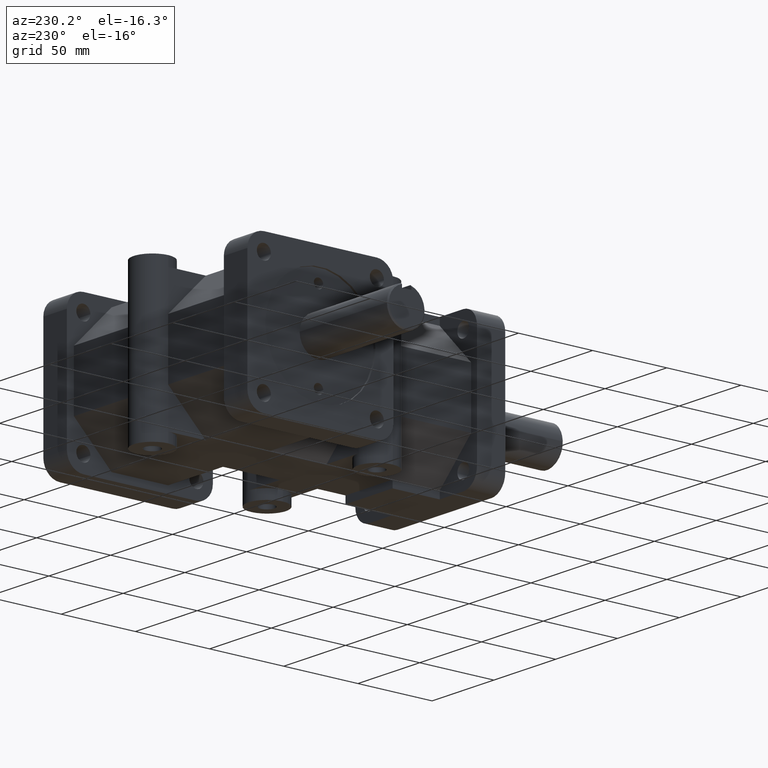
[diagram: clean part render]
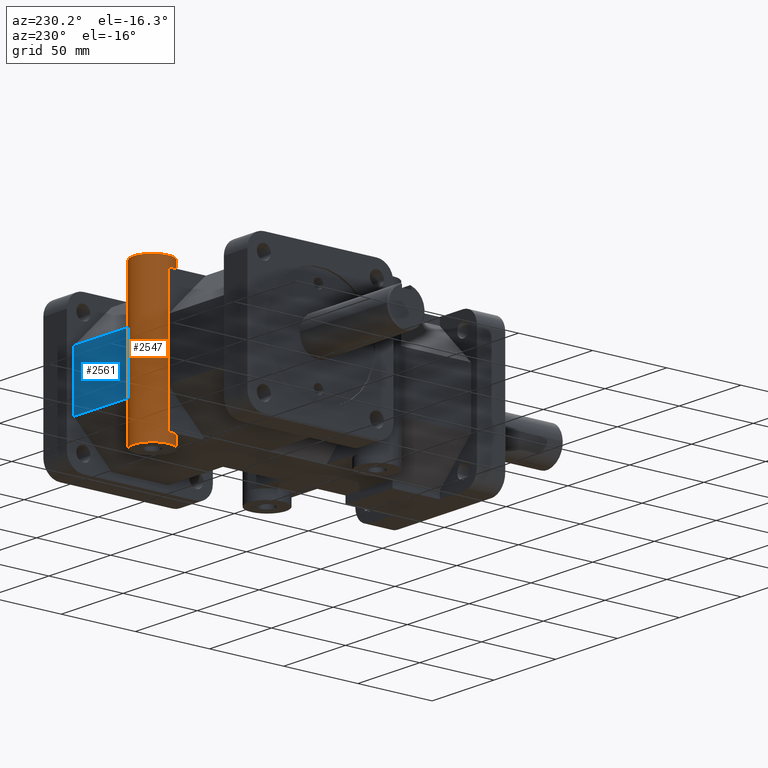
[diagram: same view with the hole feature highlighted: cylindrical wall and planar end face, labeled with their STEP entity ids]
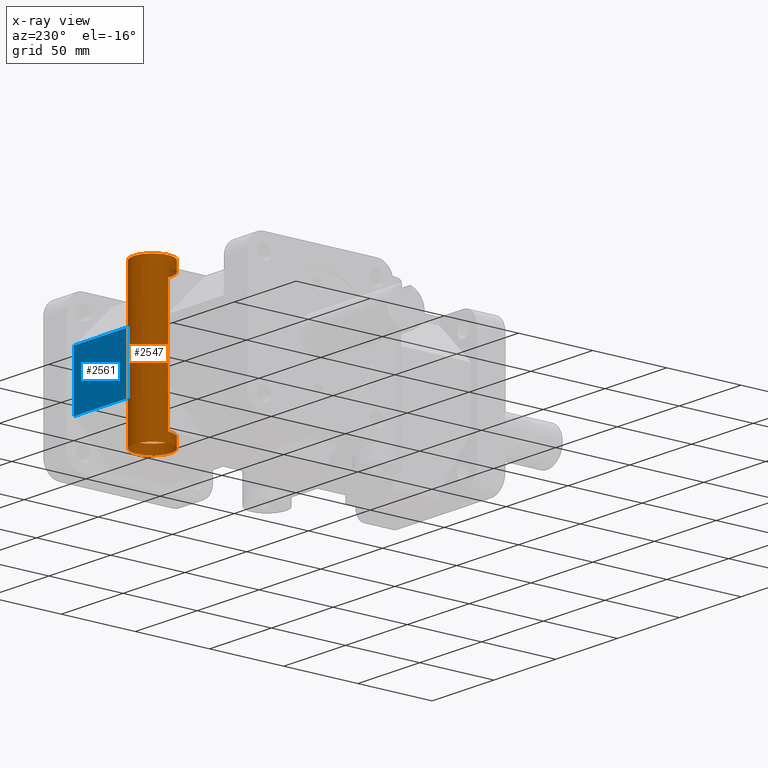
[diagram: x-ray of the same camera — body ghosted, the hole faces saturated]
A machine part, auxiliary view. The highlighted faces form one hole feature of diameter 25.4 mm: the cylindrical wall (entity #2547, orange) and its adjacent planar end face (entity #2561, blue) — they share a circular edge in the B-rep.
The next image is the same camera in x-ray (body ghosted, the hole faces saturated) — the bore reads through the body.
Wall:
#62=CYLINDRICAL_SURFACE('',#2807,0.5);
#120=CIRCLE('',#2614,0.5);
#133=CIRCLE('',#2632,0.5);
#211=CIRCLE('',#2794,0.5);
#212=CIRCLE('',#2796,0.5);
#317=FACE_OUTER_BOUND('',#494,.T.);
#494=EDGE_LOOP('',(#2112,#2113,#2114,#2115,#2116,#2117,#2118,#2119,#2120,
#2121,#2122,#2123,#2124,#2125));
#730=LINE('',#4193,#980);
#732=LINE('',#4197,#982);
#742=LINE('',#4217,#992);
#747=LINE('',#4227,#997);
#748=LINE('',#4228,#998);
#749=LINE('',#4229,#999);
#750=LINE('',#4231,#1000);
#751=LINE('',#4232,#1001);
#980=VECTOR('',#3424,1.);
#982=VECTOR('',#3428,1.);
#992=VECTOR('',#3448,1.);
#997=VECTOR('',#3459,0.5);
#998=VECTOR('',#3460,1.);
#999=VECTOR('',#3461,0.5);
#1000=VECTOR('',#3462,1.);
#1001=VECTOR('',#3463,1.);
#1079=VERTEX_POINT('',#3656);
#1080=VERTEX_POINT('',#3658);
#1118=VERTEX_POINT('',#3745);
#1119=VERTEX_POINT('',#3747);
#1257=VERTEX_POINT('',#4181);
#1258=VERTEX_POINT('',#4184);
#1260=VERTEX_POINT('',#4191);
#1261=VERTEX_POINT('',#4195);
#1266=VERTEX_POINT('',#4215);
#1269=VERTEX_POINT('',#4230);
#1310=EDGE_CURVE('',#1079,#1080,#120,.T.);
#1355=EDGE_CURVE('',#1118,#1119,#133,.T.);
#1559=EDGE_CURVE('',#1257,#1257,#211,.T.);
#1560=EDGE_CURVE('',#1258,#1258,#212,.T.);
#1564=EDGE_CURVE('',#1080,#1260,#730,.T.);
#1566=EDGE_CURVE('',#1261,#1118,#732,.T.);
#1576=EDGE_CURVE('',#1266,#1079,#742,.T.);
#1581=EDGE_CURVE('',#1258,#1118,#747,.T.);
#1582=EDGE_CURVE('',#1260,#1261,#748,.T.);
#1583=EDGE_CURVE('',#1080,#1257,#749,.T.);
#1584=EDGE_CURVE('',#1269,#1266,#750,.T.);
#1585=EDGE_CURVE('',#1119,#1269,#751,.T.);
#2112=ORIENTED_EDGE('',*,*,#1560,.T.);
#2113=ORIENTED_EDGE('',*,*,#1581,.T.);
#2114=ORIENTED_EDGE('',*,*,#1566,.F.);
#2115=ORIENTED_EDGE('',*,*,#1582,.F.);
#2116=ORIENTED_EDGE('',*,*,#1564,.F.);
#2117=ORIENTED_EDGE('',*,*,#1583,.T.);
#2118=ORIENTED_EDGE('',*,*,#1559,.T.);
#2119=ORIENTED_EDGE('',*,*,#1583,.F.);
#2120=ORIENTED_EDGE('',*,*,#1310,.F.);
#2121=ORIENTED_EDGE('',*,*,#1576,.F.);
#2122=ORIENTED_EDGE('',*,*,#1584,.F.);
#2123=ORIENTED_EDGE('',*,*,#1585,.F.);
#2124=ORIENTED_EDGE('',*,*,#1355,.F.);
#2125=ORIENTED_EDGE('',*,*,#1581,.F.);
#2547=ADVANCED_FACE('',(#317),#62,.T.);
#2614=AXIS2_PLACEMENT_3D('',#3659,#2897,#2898);
#2632=AXIS2_PLACEMENT_3D('',#3748,#2965,#2966);
#2794=AXIS2_PLACEMENT_3D('',#4182,#3411,#3412);
#2796=AXIS2_PLACEMENT_3D('',#4185,#3415,#3416);
#2807=AXIS2_PLACEMENT_3D('',#4226,#3457,#3458);
#2897=DIRECTION('center_axis',(0.,0.,-1.));
#2898=DIRECTION('ref_axis',(1.,0.,0.));
#2965=DIRECTION('center_axis',(0.,0.,1.));
#2966=DIRECTION('ref_axis',(1.,0.,0.));
#3411=DIRECTION('center_axis',(0.,0.,-1.));
#3412=DIRECTION('ref_axis',(1.,0.,0.));
#3415=DIRECTION('center_axis',(0.,0.,1.));
#3416=DIRECTION('ref_axis',(1.,0.,0.));
#3424=DIRECTION('',(0.,0.,-1.));
#3428=DIRECTION('',(0.,0.,-1.));
#3448=DIRECTION('',(0.,0.,1.));
#3457=DIRECTION('center_axis',(0.,0.,-1.));
#3458=DIRECTION('ref_axis',(1.,0.,0.));
#3459=DIRECTION('',(0.,0.,1.));
#3460=DIRECTION('',(0.,0.,-1.));
#3461=DIRECTION('',(0.,0.,1.));
#3462=DIRECTION('',(0.,0.,1.));
#3463=DIRECTION('',(0.,0.,1.));
#3656=CARTESIAN_POINT('',(0.5,7.75,1.75));
#3658=CARTESIAN_POINT('',(-0.5,7.75,1.75));
#3659=CARTESIAN_POINT('Origin',(0.,7.75,1.75));
#3745=CARTESIAN_POINT('',(-0.5,7.75,-1.75));
#3747=CARTESIAN_POINT('',(0.5,7.75,-1.75));
#3748=CARTESIAN_POINT('Origin',(0.,7.75,-1.75));
#4181=CARTESIAN_POINT('',(-0.5,7.75,2.));
#4182=CARTESIAN_POINT('Origin',(0.,7.75,2.));
#4184=CARTESIAN_POINT('',(-0.5,7.75,-2.));
#4185=CARTESIAN_POINT('Origin',(0.,7.75,-2.));
#4191=CARTESIAN_POINT('',(-0.5,7.75,0.749999999999999));
#4193=CARTESIAN_POINT('',(-0.5,7.75,0.));
#4195=CARTESIAN_POINT('',(-0.5,7.75,-0.749999999999999));
#4197=CARTESIAN_POINT('',(-0.5,7.75,0.));
#4215=CARTESIAN_POINT('',(0.5,7.75,0.75));
#4217=CARTESIAN_POINT('',(0.5,7.75,0.));
#4226=CARTESIAN_POINT('Origin',(0.,7.75,0.));
#4227=CARTESIAN_POINT('',(-0.5,7.75,0.));
#4228=CARTESIAN_POINT('',(-0.5,7.75,0.));
#4229=CARTESIAN_POINT('',(-0.5,7.75,0.));
#4230=CARTESIAN_POINT('',(0.5,7.75,-0.75));
#4231=CARTESIAN_POINT('',(0.5,7.75,0.));
#4232=CARTESIAN_POINT('',(0.5,7.75,0.));
End face:
#331=FACE_OUTER_BOUND('',#509,.T.);
#509=EDGE_LOOP('',(#2200,#2201,#2202,#2203));
#593=LINE('',#3724,#843);
#750=LINE('',#4231,#1000);
#770=LINE('',#4264,#1020);
#777=LINE('',#4279,#1027);
#843=VECTOR('',#2945,1.);
#1000=VECTOR('',#3462,1.);
#1020=VECTOR('',#3500,1.);
#1027=VECTOR('',#3517,1.);
#1110=VERTEX_POINT('',#3721);
#1111=VERTEX_POINT('',#3723);
#1266=VERTEX_POINT('',#4215);
#1269=VERTEX_POINT('',#4230);
#1343=EDGE_CURVE('',#1110,#1111,#593,.T.);
#1584=EDGE_CURVE('',#1269,#1266,#750,.T.);
#1604=EDGE_CURVE('',#1269,#1110,#770,.T.);
#1611=EDGE_CURVE('',#1111,#1266,#777,.T.);
#2200=ORIENTED_EDGE('',*,*,#1584,.T.);
#2201=ORIENTED_EDGE('',*,*,#1611,.F.);
#2202=ORIENTED_EDGE('',*,*,#1343,.F.);
#2203=ORIENTED_EDGE('',*,*,#1604,.F.);
#2416=PLANE('',#2821);
#2561=ADVANCED_FACE('',(#331),#2416,.T.);
#2821=AXIS2_PLACEMENT_3D('',#4278,#3515,#3516);
#2945=DIRECTION('',(0.,0.,1.));
#3462=DIRECTION('',(0.,0.,1.));
#3500=DIRECTION('',(1.,0.,0.));
#3515=DIRECTION('center_axis',(0.,1.,0.));
#3516=DIRECTION('ref_axis',(0.,0.,-1.));
#3517=DIRECTION('',(-1.,0.,0.));
#3721=CARTESIAN_POINT('',(2.5,7.75,-0.75));
#3723=CARTESIAN_POINT('',(2.5,7.75,0.75));
#3724=CARTESIAN_POINT('',(2.5,7.75,0.));
#4215=CARTESIAN_POINT('',(0.5,7.75,0.75));
#4230=CARTESIAN_POINT('',(0.5,7.75,-0.75));
#4231=CARTESIAN_POINT('',(0.5,7.75,0.));
#4264=CARTESIAN_POINT('',(1.25,7.75,-0.75));
#4278=CARTESIAN_POINT('Origin',(2.5,7.75,0.));
#4279=CARTESIAN_POINT('',(1.25,7.75,0.75));